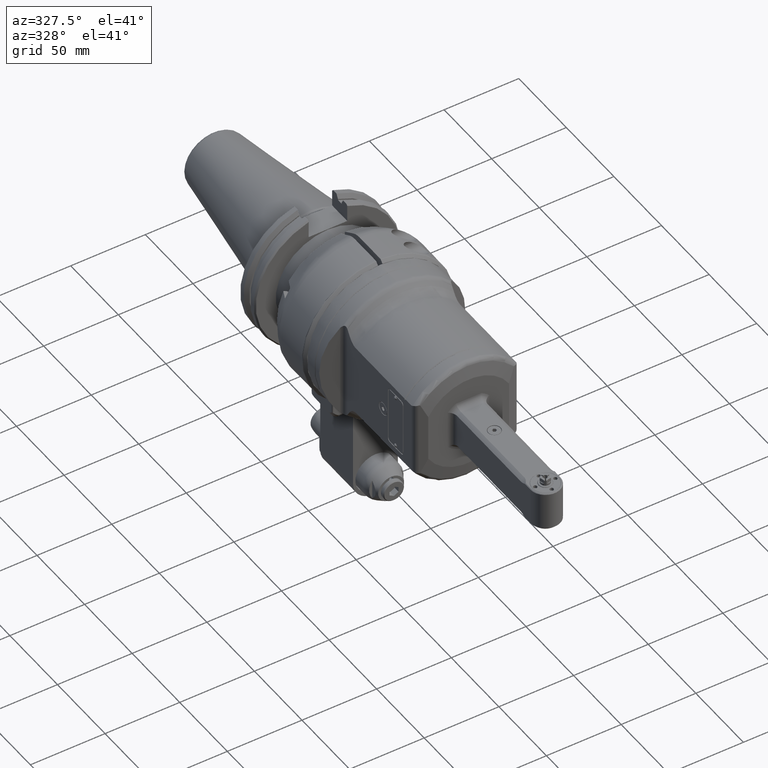
[diagram: clean part render]
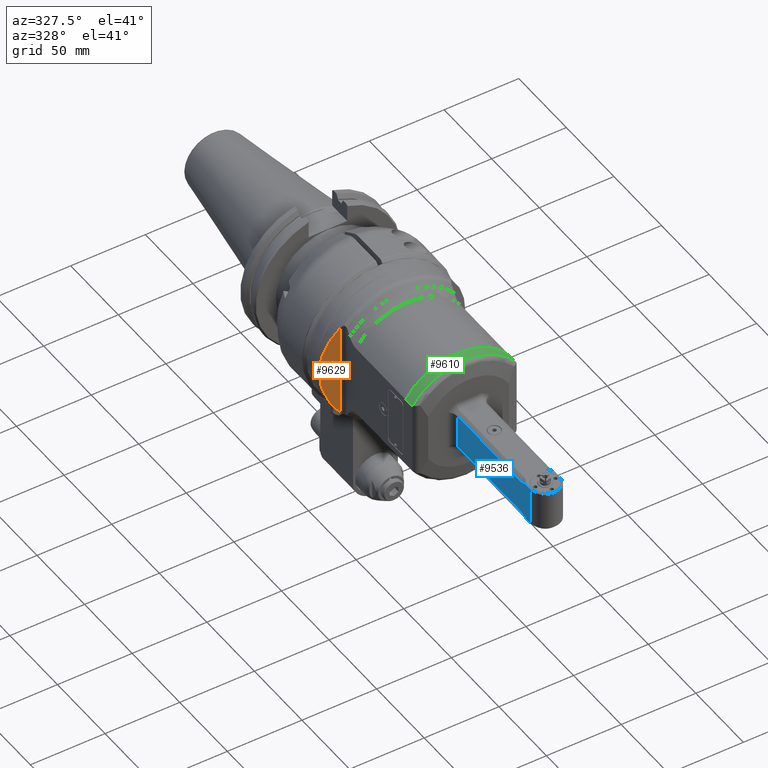
[diagram: same view with three faces highlighted in distinct colors, each labeled with its STEP entity id]
A machine part, auxiliary view with three faces highlighted in distinct colors.
Their STEP definitions:

[orange] entity #9629 — the highlighted planar face has unit normal (0.342, 0.9397, 0).
#40=ELLIPSE('',#10677,52.1447108513203,49.);
#897=LINE('',#17492,#1549);
#1549=VECTOR('',#13237,62.76427774658);
#2124=PLANE('',#10752);
#2647=FACE_OUTER_BOUND('',#3284,.T.);
#3284=EDGE_LOOP('',(#8735,#8736));
#4682=VERTEX_POINT('',#17489);
#4683=VERTEX_POINT('',#17491);
#5994=EDGE_CURVE('',#4682,#4683,#897,.T.);
#6007=EDGE_CURVE('',#4682,#4683,#40,.T.);
#8735=ORIENTED_EDGE('',*,*,#5994,.F.);
#8736=ORIENTED_EDGE('',*,*,#6007,.T.);
#9629=ADVANCED_FACE('',(#2647),#2124,.F.);
#10677=AXIS2_PLACEMENT_3D('',#17549,#13259,#13260);
#10752=AXIS2_PLACEMENT_3D('',#17876,#13445,#13446);
#13237=DIRECTION('',(0.,1.,0.));
#13259=DIRECTION('center_axis',(0.939692620785897,0.,-0.342020143325699));
#13260=DIRECTION('ref_axis',(-0.342020143325699,0.,-0.939692620785897));
#13445=DIRECTION('center_axis',(-0.939692620785897,0.,0.342020143325699));
#13446=DIRECTION('ref_axis',(-0.342020143325699,0.,-0.939692620785897));
#17489=CARTESIAN_POINT('',(4.880841014981,-31.38213887329,-37.6319194267));
#17491=CARTESIAN_POINT('',(4.880841014981,31.38213887329,-37.6319194267));
#17492=CARTESIAN_POINT('',(4.880841014981,-31.38213887329,-37.6319194267));
#17549=CARTESIAN_POINT('Origin',(18.5777395446036,0.,0.));
#17876=CARTESIAN_POINT('Origin',(6.930692048084,-58.8000024,-32.));

[blue] entity #9536 — the highlighted planar face has unit normal (1, 0, -0).
#88=(
BOUNDED_CURVE()
B_SPLINE_CURVE(2,(#16882,#16883,#16884),.UNSPECIFIED.,.F.,.F.)
B_SPLINE_CURVE_WITH_KNOTS((3,3),(5.2090245856799,5.27487875315823),
 .UNSPECIFIED.)
CURVE()
GEOMETRIC_REPRESENTATION_ITEM()
RATIONAL_B_SPLINE_CURVE((1.11301530317361,1.10447190167208,1.09569442025541))
REPRESENTATION_ITEM('')
);
#89=(
BOUNDED_CURVE()
B_SPLINE_CURVE(2,(#16906,#16907,#16908),.UNSPECIFIED.,.F.,.F.)
B_SPLINE_CURVE_WITH_KNOTS((3,3),(-0.401960358142327,-0.336106201358392),
 .UNSPECIFIED.)
CURVE()
GEOMETRIC_REPRESENTATION_ITEM()
RATIONAL_B_SPLINE_CURVE((1.11301530341903,1.10447190330827,1.09569442335839))
REPRESENTATION_ITEM('')
);
#194=B_SPLINE_CURVE_WITH_KNOTS('',3,(#16886,#16887,#16888,#16889,#16890,
#16891),.UNSPECIFIED.,.F.,.F.,(4,2,4),(-3.12940599620332,-2.95668292882678,
-2.79548912181595),.UNSPECIFIED.);
#195=B_SPLINE_CURVE_WITH_KNOTS('',3,(#16899,#16900,#16901,#16902,#16903,
#16904),.UNSPECIFIED.,.F.,.F.,(4,2,4),(-3.46332286889375,-3.30212906357985,
-3.12940599620331),.UNSPECIFIED.);
#816=LINE('',#16875,#1468);
#818=LINE('',#16893,#1470);
#819=LINE('',#16895,#1471);
#820=LINE('',#16897,#1472);
#821=LINE('',#16910,#1473);
#822=LINE('',#16911,#1474);
#1468=VECTOR('',#12966,10.);
#1470=VECTOR('',#12970,66.18836509641);
#1471=VECTOR('',#12971,22.360679775);
#1472=VECTOR('',#12972,66.18836509642);
#1473=VECTOR('',#12973,5.83792617099504);
#1474=VECTOR('',#12974,25.);
#2083=PLANE('',#10572);
#2554=FACE_OUTER_BOUND('',#3181,.T.);
#3181=EDGE_LOOP('',(#8239,#8240,#8241,#8242,#8243,#8244,#8245,#8246,#8247,
#8248));
#4566=VERTEX_POINT('',#16873);
#4567=VERTEX_POINT('',#16874);
#4568=VERTEX_POINT('',#16881);
#4569=VERTEX_POINT('',#16885);
#4570=VERTEX_POINT('',#16892);
#4571=VERTEX_POINT('',#16894);
#4572=VERTEX_POINT('',#16896);
#4573=VERTEX_POINT('',#16898);
#4574=VERTEX_POINT('',#16905);
#4575=VERTEX_POINT('',#16909);
#5834=EDGE_CURVE('',#4566,#4567,#816,.T.);
#5837=EDGE_CURVE('',#4568,#4566,#88,.T.);
#5838=EDGE_CURVE('',#4569,#4568,#194,.T.);
#5839=EDGE_CURVE('',#4570,#4569,#818,.T.);
#5840=EDGE_CURVE('',#4571,#4570,#819,.T.);
#5841=EDGE_CURVE('',#4572,#4571,#820,.T.);
#5842=EDGE_CURVE('',#4573,#4572,#195,.T.);
#5843=EDGE_CURVE('',#4573,#4574,#89,.T.);
#5844=EDGE_CURVE('',#4575,#4574,#821,.T.);
#5845=EDGE_CURVE('',#4567,#4575,#822,.T.);
#8239=ORIENTED_EDGE('',*,*,#5834,.F.);
#8240=ORIENTED_EDGE('',*,*,#5837,.F.);
#8241=ORIENTED_EDGE('',*,*,#5838,.F.);
#8242=ORIENTED_EDGE('',*,*,#5839,.F.);
#8243=ORIENTED_EDGE('',*,*,#5840,.F.);
#8244=ORIENTED_EDGE('',*,*,#5841,.F.);
#8245=ORIENTED_EDGE('',*,*,#5842,.F.);
#8246=ORIENTED_EDGE('',*,*,#5843,.T.);
#8247=ORIENTED_EDGE('',*,*,#5844,.F.);
#8248=ORIENTED_EDGE('',*,*,#5845,.F.);
#9536=ADVANCED_FACE('',(#2554),#2083,.F.);
#10572=AXIS2_PLACEMENT_3D('',#16880,#12968,#12969);
#12966=DIRECTION('',(1.,0.,0.));
#12968=DIRECTION('center_axis',(0.,0.,1.));
#12969=DIRECTION('ref_axis',(1.,0.,0.));
#12970=DIRECTION('',(1.,0.,0.));
#12971=DIRECTION('',(0.,-1.,0.));
#12972=DIRECTION('',(-1.,0.,0.));
#12973=DIRECTION('',(-0.999999999999993,-8.57250315518294E-8,-8.08396367196094E-8));
#12974=DIRECTION('',(0.,1.,0.));
#16873=CARTESIAN_POINT('',(155.72057172528,-12.4999999881542,-10.0000000061654));
#16874=CARTESIAN_POINT('',(161.5585,-12.5,-10.));
#16875=CARTESIAN_POINT('',(133.5842384371,-12.5,-10.));
#16880=CARTESIAN_POINT('Origin',(107.9885,51.0000024,-10.));
#16881=CARTESIAN_POINT('',(154.608566531527,-11.9773082030835,-9.99999999962009));
#16882=CARTESIAN_POINT('Ctrl Pts',(154.608566531648,-11.9773082028295,-10.));
#16883=CARTESIAN_POINT('Ctrl Pts',(155.152696173172,-12.2353078965346,-10.));
#16884=CARTESIAN_POINT('Ctrl Pts',(155.720571725596,-12.4999999874867,-10.));
#16885=CARTESIAN_POINT('',(151.1883650964,-11.1803398875,-10.));
#16886=CARTESIAN_POINT('Ctrl Pts',(151.1883650964,-11.1803398874989,-10.));
#16887=CARTESIAN_POINT('Ctrl Pts',(151.764108654322,-11.1803398874989,-10.));
#16888=CARTESIAN_POINT('Ctrl Pts',(152.390041188985,-11.2520956734236,-10.));
#16889=CARTESIAN_POINT('Ctrl Pts',(153.56527819847,-11.5397298086396,-10.));
#16890=CARTESIAN_POINT('Ctrl Pts',(154.117307987965,-11.7443774006631,-10.));
#16891=CARTESIAN_POINT('Ctrl Pts',(154.608566531647,-11.9773082028309,-10.));
#16892=CARTESIAN_POINT('',(85.,-11.1803398875,-10.));
#16893=CARTESIAN_POINT('',(85.,-11.1803398875,-10.));
#16894=CARTESIAN_POINT('',(85.,11.1803398875,-10.));
#16895=CARTESIAN_POINT('',(85.,11.1803398875,-10.));
#16896=CARTESIAN_POINT('',(151.1883650964,11.1803398875,-10.));
#16897=CARTESIAN_POINT('',(151.1883650964,11.1803398875,-10.));
#16898=CARTESIAN_POINT('',(154.608566516979,11.9773081936877,-10.0000000026149));
#16899=CARTESIAN_POINT('Ctrl Pts',(154.608566516132,11.9773081954745,-10.));
#16900=CARTESIAN_POINT('Ctrl Pts',(154.117307976367,11.7443773963014,-10.));
#16901=CARTESIAN_POINT('Ctrl Pts',(153.565278192497,11.5397298071779,-10.));
#16902=CARTESIAN_POINT('Ctrl Pts',(152.390041188985,11.2520956734236,-10.));
#16903=CARTESIAN_POINT('Ctrl Pts',(151.764108654322,11.1803398874989,-10.));
#16904=CARTESIAN_POINT('Ctrl Pts',(151.1883650964,11.1803398874989,-10.));
#16905=CARTESIAN_POINT('',(155.720571606257,12.4999997150484,-10.0000002435295));
#16906=CARTESIAN_POINT('Ctrl Pts',(154.608566516137,11.977308195475,-10.));
#16907=CARTESIAN_POINT('Ctrl Pts',(155.152696068157,12.2353078468067,-10.));
#16908=CARTESIAN_POINT('Ctrl Pts',(155.720571523234,12.499999893164,-10.));
#16909=CARTESIAN_POINT('',(161.5585,12.5,-10.));
#16910=CARTESIAN_POINT('',(161.5585,12.5,-10.));
#16911=CARTESIAN_POINT('',(161.5585,-12.5,-10.));

[green] entity #9610 — the highlighted cylindrical surface (partial cylindrical patch) has radius 42.5 mm, axis along (0, -1, -0).
#210=B_SPLINE_CURVE_WITH_KNOTS('',3,(#17212,#17213,#17214,#17215,#17216,
#17217),.UNSPECIFIED.,.F.,.F.,(4,2,4),(-3.02262020492527,-2.94613654129864,
-2.89897888150507),.UNSPECIFIED.);
#233=B_SPLINE_CURVE_WITH_KNOTS('',3,(#17751,#17752,#17753,#17754,#17755,
#17756,#17757,#17758,#17759,#17760,#17761,#17762,#17763),.UNSPECIFIED.,
 .F.,.F.,(4,3,3,3,4),(0.,0.3333333333333,0.648342059174436,0.6666666666667,
1.),.UNSPECIFIED.);
#845=LINE('',#17280,#1497);
#918=LINE('',#17739,#1570);
#1497=VECTOR('',#13065,5.791081086278);
#1570=VECTOR('',#13376,6.421557096923);
#1801=CYLINDRICAL_SURFACE('',#10726,42.5);
#2628=FACE_OUTER_BOUND('',#3265,.T.);
#3265=EDGE_LOOP('',(#8644,#8645,#8646,#8647,#8648,#8649));
#3782=CIRCLE('',#10597,42.5);
#3848=CIRCLE('',#10727,42.5);
#4604=VERTEX_POINT('',#17168);
#4605=VERTEX_POINT('',#17179);
#4606=VERTEX_POINT('',#17192);
#4627=VERTEX_POINT('',#17279);
#4727=VERTEX_POINT('',#17737);
#4728=VERTEX_POINT('',#17738);
#5886=EDGE_CURVE('',#4604,#4605,#3782,.T.);
#5891=EDGE_CURVE('',#4606,#4605,#210,.T.);
#5910=EDGE_CURVE('',#4627,#4606,#845,.T.);
#6064=EDGE_CURVE('',#4727,#4728,#918,.T.);
#6068=EDGE_CURVE('',#4627,#4727,#3848,.T.);
#6069=EDGE_CURVE('',#4604,#4728,#233,.T.);
#8644=ORIENTED_EDGE('',*,*,#6064,.F.);
#8645=ORIENTED_EDGE('',*,*,#6068,.F.);
#8646=ORIENTED_EDGE('',*,*,#5910,.T.);
#8647=ORIENTED_EDGE('',*,*,#5891,.T.);
#8648=ORIENTED_EDGE('',*,*,#5886,.F.);
#8649=ORIENTED_EDGE('',*,*,#6069,.T.);
#9610=ADVANCED_FACE('',(#2628),#1801,.T.);
#10597=AXIS2_PLACEMENT_3D('',#17180,#13037,#13038);
#10726=AXIS2_PLACEMENT_3D('',#17749,#13379,#13380);
#10727=AXIS2_PLACEMENT_3D('',#17750,#13381,#13382);
#13037=DIRECTION('center_axis',(1.,0.,0.));
#13038=DIRECTION('ref_axis',(0.,-0.573427873563311,0.819256048998516));
#13065=DIRECTION('',(1.,0.,0.));
#13376=DIRECTION('',(1.,0.,0.));
#13379=DIRECTION('center_axis',(1.,0.,0.));
#13380=DIRECTION('ref_axis',(0.,-1.,0.));
#13381=DIRECTION('center_axis',(-1.,0.,0.));
#13382=DIRECTION('ref_axis',(0.,-0.567273574176089,-0.823529411764684));
#17168=CARTESIAN_POINT('',(76.48270110647,-24.37068462644,34.81838208244));
#17179=CARTESIAN_POINT('',(76.48270110647,-24.37068462644,-34.81838208244));
#17180=CARTESIAN_POINT('Origin',(76.48270110647,0.,0.));
#17192=CARTESIAN_POINT('',(75.29108108628,-24.10912690248,-35.));
#17212=CARTESIAN_POINT('Ctrl Pts',(75.29108108628,-24.1091269024824,-35.));
#17213=CARTESIAN_POINT('Ctrl Pts',(75.5460266317021,-24.1091269024824,-35.));
#17214=CARTESIAN_POINT('Ctrl Pts',(75.799317244049,-24.145012379675,-34.9753499095124));
#17215=CARTESIAN_POINT('Ctrl Pts',(76.1937359065077,-24.2539567806256,-34.8998300386));
#17216=CARTESIAN_POINT('Ctrl Pts',(76.3406932955695,-24.3073689140842,-34.8626991117028));
#17217=CARTESIAN_POINT('Ctrl Pts',(76.4827011064697,-24.3706846264393,-34.8183820824379));
#17279=CARTESIAN_POINT('',(69.5,-24.10912690248,-35.));
#17280=CARTESIAN_POINT('',(69.5,-24.10912690248,-35.));
#17737=CARTESIAN_POINT('',(69.5,-24.18155288645,34.95));
#17738=CARTESIAN_POINT('',(75.92155709692,-24.18155288645,34.95));
#17739=CARTESIAN_POINT('',(69.5,-24.18155288645,34.95));
#17749=CARTESIAN_POINT('Origin',(22.25229287192,0.,0.));
#17750=CARTESIAN_POINT('Origin',(69.5,0.,0.));
#17751=CARTESIAN_POINT('Ctrl Pts',(76.4827011064694,-24.37068462644,34.818382082438));
#17752=CARTESIAN_POINT('Ctrl Pts',(76.418648587829,-24.34212612096,34.8383712458867));
#17753=CARTESIAN_POINT('Ctrl Pts',(76.3550633653311,-24.316234265205,34.8564443264677));
#17754=CARTESIAN_POINT('Ctrl Pts',(76.2921607224506,-24.2928896201908,34.8727044248231));
#17755=CARTESIAN_POINT('Ctrl Pts',(76.2327160782931,-24.2708283195475,34.8880706434181));
#17756=CARTESIAN_POINT('Ctrl Pts',(76.1738824519416,-24.2510418678022,34.9018232274161));
#17757=CARTESIAN_POINT('Ctrl Pts',(76.1154751256931,-24.2333211020483,34.9141249938882));
#17758=CARTESIAN_POINT('Ctrl Pts',(76.1120774695637,-24.2322902541693,34.914840609119));
#17759=CARTESIAN_POINT('Ctrl Pts',(76.1086812500296,-24.2312663964725,34.9155513015664));
#17760=CARTESIAN_POINT('Ctrl Pts',(76.1052864285938,-24.2302494877842,34.9162570983718));
#17761=CARTESIAN_POINT('Ctrl Pts',(76.0435330106429,-24.211751434665,34.9290958782422));
#17762=CARTESIAN_POINT('Ctrl Pts',(75.9822432674192,-24.1955527627,34.9403136266649));
#17763=CARTESIAN_POINT('Ctrl Pts',(75.9215570969202,-24.18155288645,34.9500000000009));